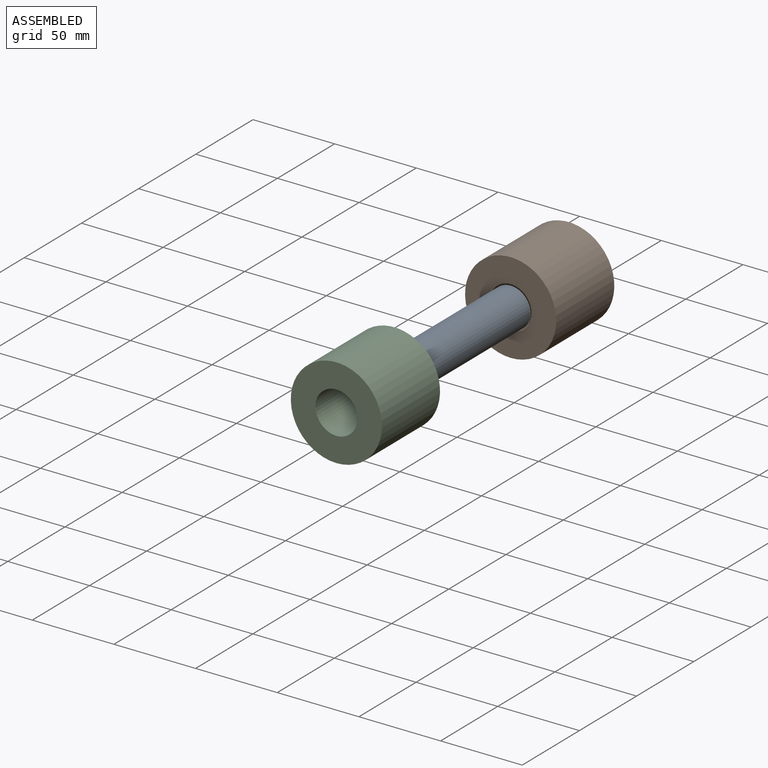
[diagram: assembled view]
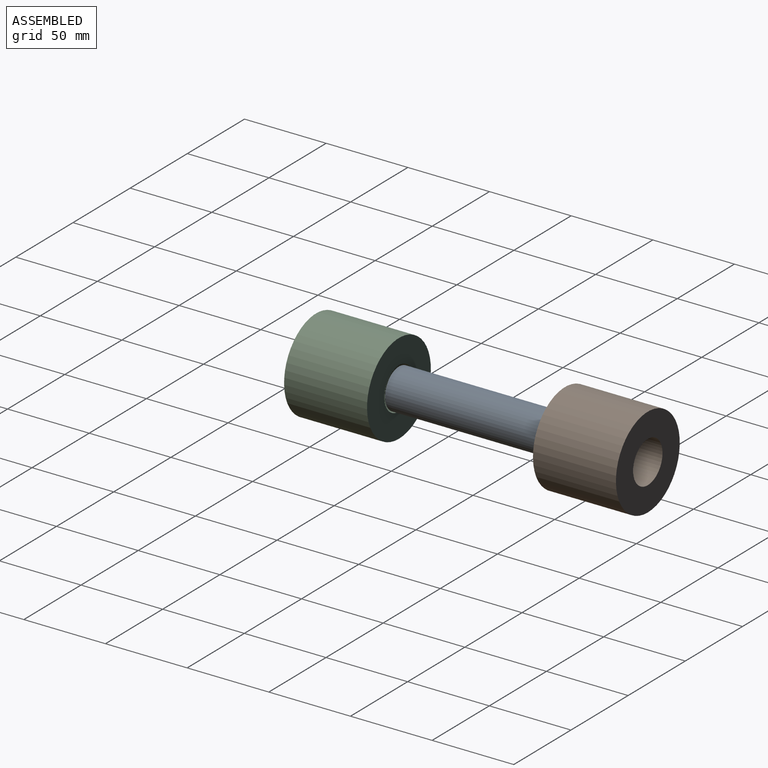
[diagram: assembled view, second angle]
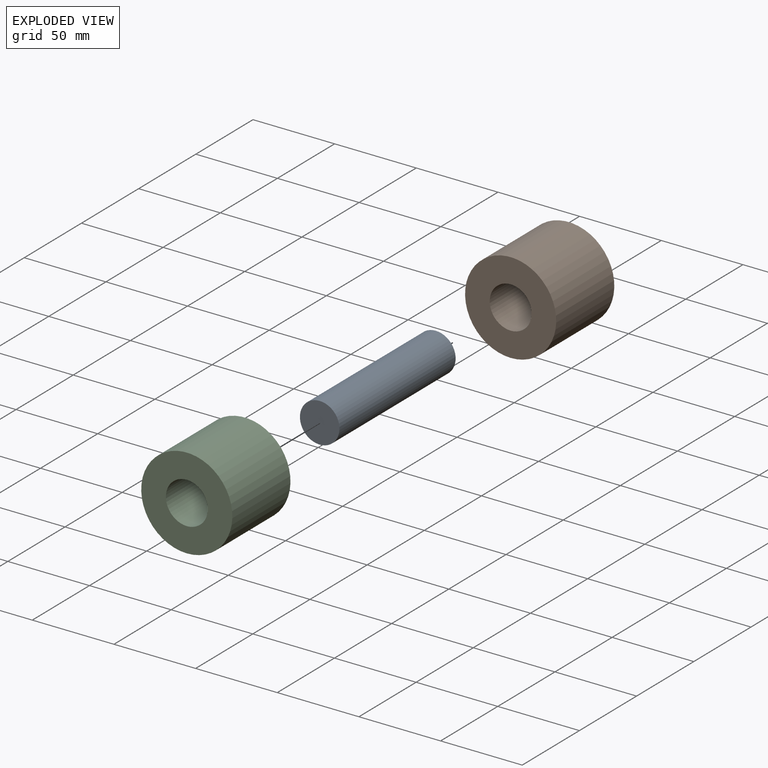
[diagram: exploded view]
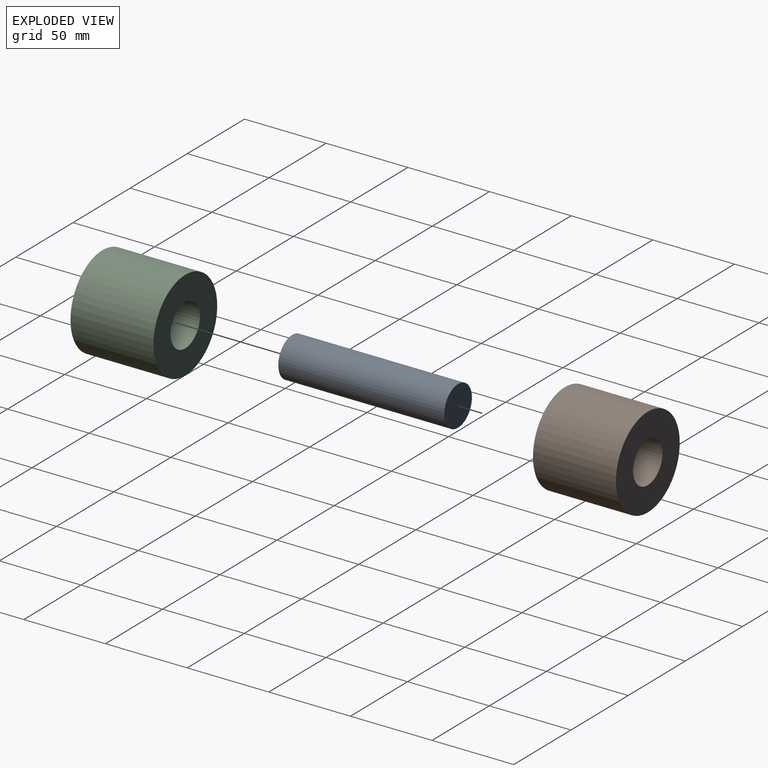
[diagram: exploded view, second angle]
ASSEMBLY  parts=3 mates=2
PART A: 3 faces, bbox 24.2x101.6x24.2 mm
  f0: cylinder r=12.11mm len=101.6mm, axis (0,1,0), area 7731.5mm2, adj f1,f2
  f1: plane 24.22x24.22mm, normal (0,-1,0), area 460.8mm2, adj f0
  f2: plane 24.22x24.22mm, normal (0,1,0), area 460.8mm2, adj f0
PART B: 4 faces, bbox 55.8x50.8x55.8 mm
  f0: cylinder r=12.83mm len=50.8mm, axis (0,1,0), area 4094.4mm2, adj f2,f3
  f1: cylinder r=27.9mm len=55.8mm, axis (0,1,0), area 8905.8mm2, adj f2,f3
  f2: plane 55.8x55.8mm, normal (0,-1,0), area 1928.8mm2, adj f0,f1
  f3: plane 55.8x55.8mm, normal (0,1,0), area 1928.8mm2, adj f0,f1
PART C: same geometry as B
PLACE A t=(22.12,-63.27,48.29)mm
PLACE B t=(22.12,-12.47,48.29)mm
PLACE C t=(22.12,-164.87,48.29)mm
MATE fastened A.f0 <-> B.f1  axis (0,1,0) through (22.12,-63.27,48.29)mm
MATE fastened C.f0 <-> A.f0  axis (0,1,0) through (22.12,-164.87,48.29)mm
